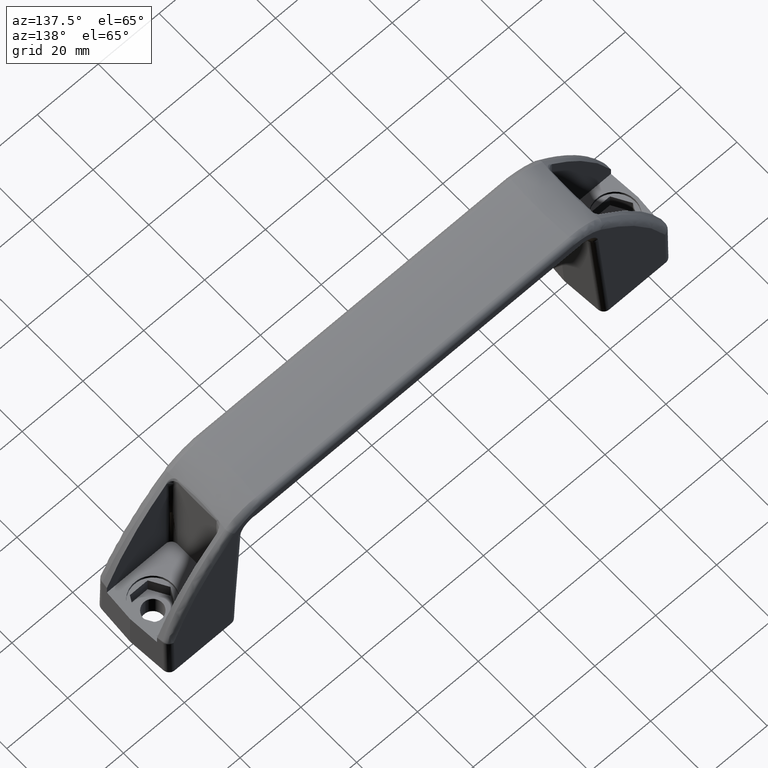
[diagram: clean part render]
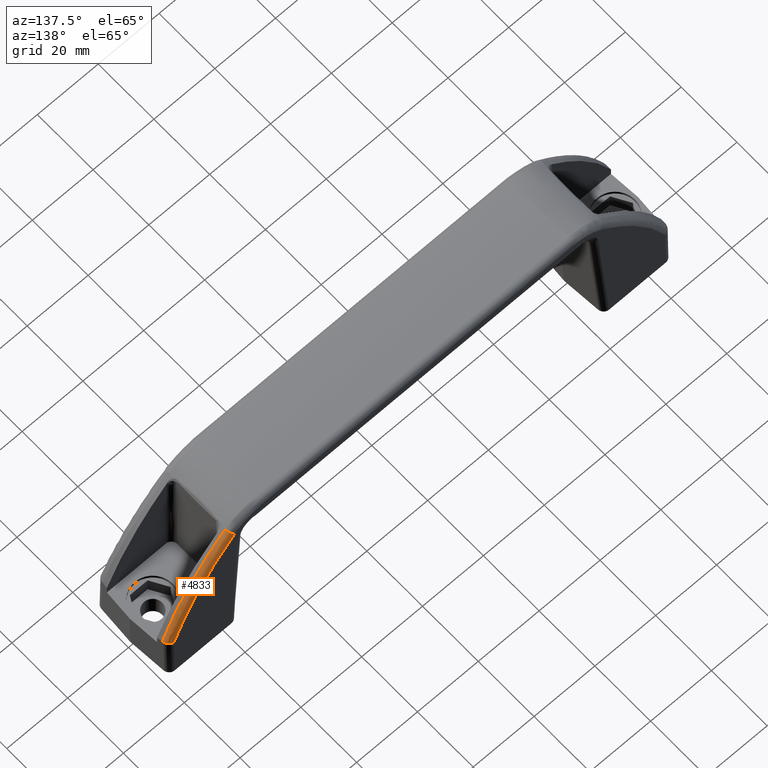
[diagram: same view with one face highlighted and labeled with its STEP entity id]
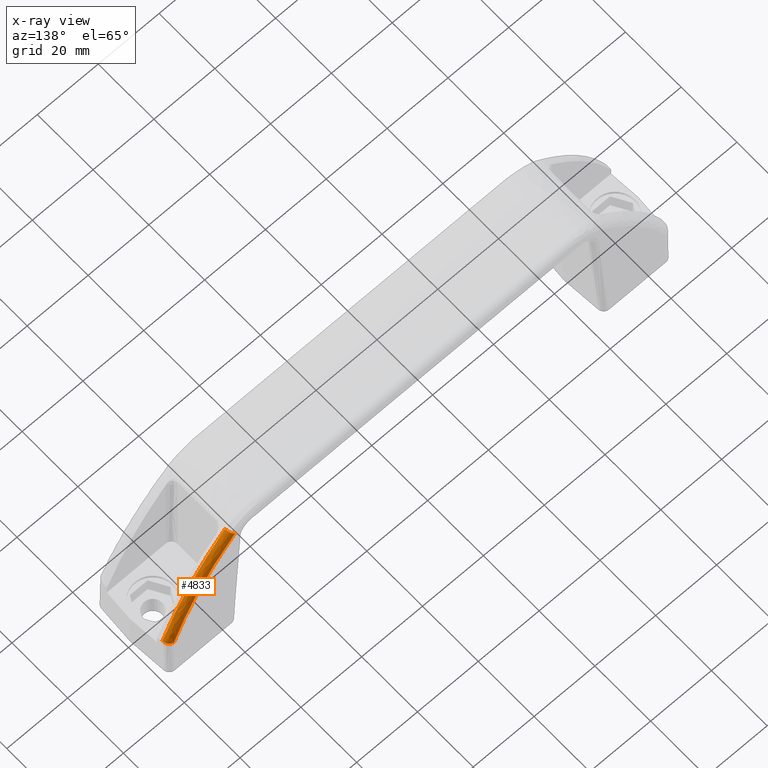
[diagram: x-ray of the same camera — body ghosted, the highlighted face saturated]
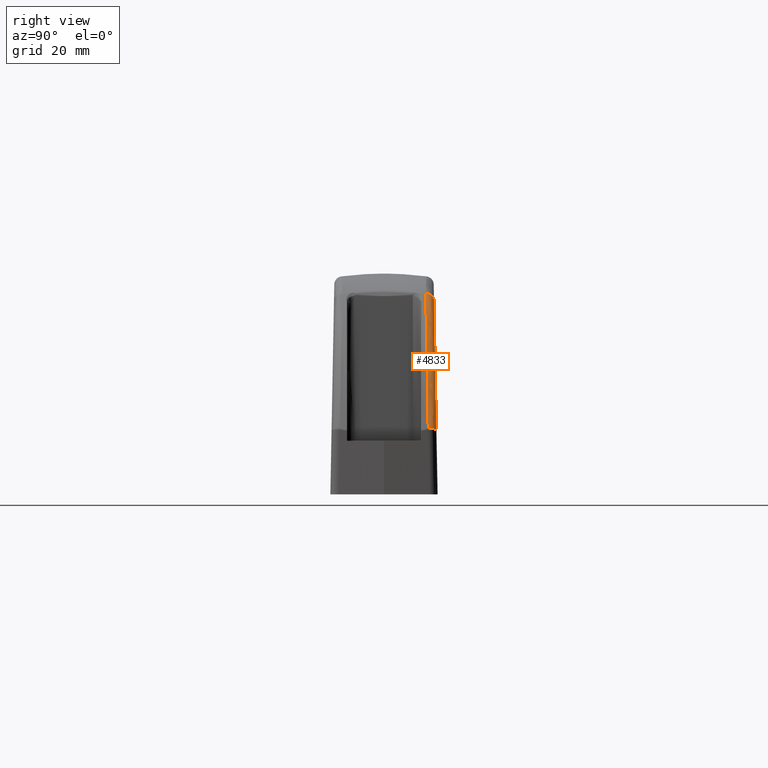
[diagram: same view with one face highlighted and labeled with its STEP entity id]
A machine part, auxiliary view. The second image highlights one B-rep face of the part: STEP entity #4833.
The next image is the same camera in x-ray: the body ghosted, the highlighted face saturated — about 0% of this face is hidden behind the body in this view.
A second angle (right view) of the same face is appended — the face is thin or edge-on in the first view.
In plain terms, the highlighted face is a freeform B-spline surface patch.
Its self-contained STEP definition (entity closure, byte-faithful):
#2326=CARTESIAN_POINT('',(158.659522616671500,10.843078358508000,16.000052211921499));
#2327=VERTEX_POINT('',#2326);
#2341=CARTESIAN_POINT('',(158.666504911986010,10.714030413870100,15.993465574006450));
#2342=VERTEX_POINT('',#2341);
#2343=CARTESIAN_POINT('',(158.666504911986010,10.714030413870100,15.993465574006400));
#2344=CARTESIAN_POINT('',(158.664824797454490,10.756968664140061,15.997870262445460));
#2345=CARTESIAN_POINT('',(158.662500101059090,10.799984335316401,16.000074788987540));
#2346=CARTESIAN_POINT('',(158.659522616671500,10.843078358508000,16.000052211921499));
#2347=QUASI_UNIFORM_CURVE('',3,(#2343,#2344,#2345,#2346),.UNSPECIFIED.,.F.,.U.);
#2348=EDGE_CURVE('',#2342,#2327,#2347,.T.);
#2487=CARTESIAN_POINT('',(156.729857536941490,12.710360635578599,15.495705996542251));
#2488=VERTEX_POINT('',#2487);
#2520=CARTESIAN_POINT('',(158.659522616671500,10.843078358508000,16.000052211921499));
#2521=CARTESIAN_POINT('',(158.650814586259000,10.969112290413049,15.999986182430630));
#2522=CARTESIAN_POINT('',(158.630796931356910,11.092344907410030,15.996722542439450));
#2523=CARTESIAN_POINT('',(158.584511117391710,11.273166321015671,15.987225961228541));
#2524=CARTESIAN_POINT('',(158.566354080153590,11.332764278298800,15.983288293455111));
#2525=CARTESIAN_POINT('',(158.524481616903500,11.450583293127510,15.973838714900451));
#2526=CARTESIAN_POINT('',(158.500625118171400,11.509067013195549,15.968292438132590));
#2527=CARTESIAN_POINT('',(158.421939617341200,11.679144456376729,15.949568016440880));
#2528=CARTESIAN_POINT('',(158.359904041510900,11.786167921025671,15.934294278416040));
#2529=CARTESIAN_POINT('',(158.252760832531810,11.937343797460180,15.907267329942840));
#2530=CARTESIAN_POINT('',(158.214682860464310,11.986165730293351,15.897567821197519));
#2531=CARTESIAN_POINT('',(158.133656255587710,12.080573877420051,15.876743674794859));
#2532=CARTESIAN_POINT('',(158.091111388634490,12.125665549411490,15.865722324315181));
#2533=CARTESIAN_POINT('',(157.958576683251410,12.253698378048890,15.831143731047939));
#2534=CARTESIAN_POINT('',(157.863312321159810,12.329947416619349,15.805977955734869));
#2535=CARTESIAN_POINT('',(157.710012642240510,12.430603247817579,15.765034110071941));
#2536=CARTESIAN_POINT('',(157.656875128126590,12.461996414996900,15.750771052411791));
#2537=CARTESIAN_POINT('',(157.548756981839290,12.519085855266511,15.721610756852840));
#2538=CARTESIAN_POINT('',(157.493771110422700,12.544832167533260,15.706713068026120));
#2539=CARTESIAN_POINT('',(157.326104541616500,12.613889751261530,15.661089417355530));
#2540=CARTESIAN_POINT('',(157.210738472485300,12.649090797248180,15.629440846293930));
#2541=CARTESIAN_POINT('',(157.032160406417200,12.685188682968400,15.580061268848651));
#2542=CARTESIAN_POINT('',(156.971817188211590,12.694370114997341,15.563311521459040));
#2543=CARTESIAN_POINT('',(156.881267979470010,12.703674901738840,15.538082095981810));
#2544=CARTESIAN_POINT('',(156.851024649408290,12.706042848445870,15.529639742468010));
#2545=CARTESIAN_POINT('',(156.790417225595600,12.709308354168691,15.512689768601280));
#2546=CARTESIAN_POINT('',(156.759840597675090,12.710203325752520,15.504122072237330));
#2547=CARTESIAN_POINT('',(156.729857536941490,12.710360635578599,15.495705996542201));
#2548=B_SPLINE_CURVE_WITH_KNOTS('',3,(#2520,#2521,#2522,#2523,#2524,#2525,#2526,#2527,#2528,#2529,#2530,#2531,#2532,#2533,#2534,#2535,#2536,#2537,#2538,#2539,#2540,#2541,#2542,#2543,#2544,#2545,#2546,#2547),.UNSPECIFIED.,.F.,.U.,(4,2,2,2,2,2,2,2,2,2,2,2,2,4),(0.0,0.125000000000016,0.187500000000024,0.250000000000032,0.375000000000038,0.437500000000041,0.500000000000044,0.625000000000050,0.687500000000041,0.750000000000033,0.875000000000016,0.937500000000008,0.968750000000004,1.0),.UNSPECIFIED.);
#2549=EDGE_CURVE('',#2327,#2488,#2548,.T.);
#4738=CARTESIAN_POINT('',(156.866369517837460,12.717792035818727,15.098126083695746));
#4739=CARTESIAN_POINT('',(154.591708220079940,12.605474858604682,21.107095064775194));
#4740=CARTESIAN_POINT('',(151.678345387153480,12.497685094542790,26.873847441983820));
#4741=CARTESIAN_POINT('',(144.703881075096690,12.295955258545153,37.666393667799525));
#4742=CARTESIAN_POINT('',(140.643118014582630,12.202024969475112,42.691664133172175));
#4743=CARTESIAN_POINT('',(136.053958274083360,12.116275078098658,47.279283321712171));
#4744=CARTESIAN_POINT('',(136.008789225494610,12.115431080236503,47.324437207336437));
#4745=CARTESIAN_POINT('',(135.963620173971920,12.114587082319526,47.369591095893611));
#4746=CARTESIAN_POINT('',(156.872932237087750,12.717745616700471,15.100609506522227));
#4747=CARTESIAN_POINT('',(154.598091411186030,12.605419802864901,21.110040546788568));
#4748=CARTESIAN_POINT('',(151.684500371624670,12.497621772621821,26.877235164741865));
#4749=CARTESIAN_POINT('',(144.709492703719800,12.295876487891952,37.670607897759382));
#4750=CARTESIAN_POINT('',(140.648414468365050,12.201939019303380,42.696262467310689));
#4751=CARTESIAN_POINT('',(136.058899907182050,12.116182585269936,47.284231688049893));
#4752=CARTESIAN_POINT('',(136.013727441404260,12.115338524415565,47.329388943757422));
#4753=CARTESIAN_POINT('',(135.968554974157400,12.114494463533756,47.374546200933715));
#4754=CARTESIAN_POINT('',(158.737688728162570,12.704555908476166,15.806258896522186));
#4755=CARTESIAN_POINT('',(156.410716901588360,12.589785704550748,21.946464788253088));
#4756=CARTESIAN_POINT('',(153.431289060965780,12.479650969305659,27.838673138162822));
#4757=CARTESIAN_POINT('',(146.300317764135290,12.273546013525744,38.865288280342831));
#4758=CARTESIAN_POINT('',(142.149120330868640,12.177585757309991,43.999161970054516));
#4759=CARTESIAN_POINT('',(137.458414705428310,12.089987786918654,48.685653399980531));
#4760=CARTESIAN_POINT('',(137.412268015914320,12.089126006908463,48.731758630663506));
#4761=CARTESIAN_POINT('',(137.366121748734170,12.088264234785267,48.777863439392021));
#4762=CARTESIAN_POINT('',(158.750026368714860,10.711009222190327,15.773666704901014));
#4763=CARTESIAN_POINT('',(156.425011952518130,10.598679052238273,21.915652934690154));
#4764=CARTESIAN_POINT('',(153.447157613628430,10.490876845855576,27.810060047208058));
#4765=CARTESIAN_POINT('',(146.318303685369130,10.289123751124457,38.841513850924571));
#4766=CARTESIAN_POINT('',(142.167649897980970,10.195182648822872,43.978025316728633));
#4767=CARTESIAN_POINT('',(137.476903087362960,10.109422900385237,48.667197227826435));
#4768=CARTESIAN_POINT('',(137.430734239418540,10.108578806908186,48.713350574764391));
#4769=CARTESIAN_POINT('',(137.384565389972010,10.107734713403659,48.759503923204036));
#4770=CARTESIAN_POINT('',(158.750069806112800,10.703990499243059,15.773551956866855));
#4771=CARTESIAN_POINT('',(156.425062312487940,10.591664591661159,21.915544387751247));
#4772=CARTESIAN_POINT('',(153.447213549949540,10.483866458050626,27.809959186652033));
#4773=CARTESIAN_POINT('',(146.318367155468510,10.282120969523683,38.841429953893140));
#4774=CARTESIAN_POINT('',(142.167715320140330,10.188183397759008,43.977950689755595));
#4775=CARTESIAN_POINT('',(137.476968394688840,10.102426863797220,48.667132034276563));
#4776=CARTESIAN_POINT('',(137.430799468773840,10.101582800553961,48.713285550878027));
#4777=CARTESIAN_POINT('',(137.384630539858820,10.100738737255854,48.759439070478543));
#4785=(BOUNDED_SURFACE()B_SPLINE_SURFACE(3,2,((#4738,#4746,#4754,#4762,#4770),(#4739,#4747,#4755,#4763,#4771),(#4740,#4748,#4756,#4764,#4772),(#4741,#4749,#4757,#4765,#4773),(#4742,#4750,#4758,#4766,#4774),(#4743,#4751,#4759,#4767,#4775),(#4744,#4752,#4760,#4768,#4776),(#4745,#4753,#4761,#4769,#4777)),.UNSPECIFIED.,.F.,.F.,.U.)B_SPLINE_SURFACE_WITH_KNOTS((4,2,2,4),(3,1,1,3),(0.0,19.704830782941169,39.409661565882303,39.605534648412693),(0.0,0.016491113356796,3.314707351487917,3.331204972278056),.UNSPECIFIED.)GEOMETRIC_REPRESENTATION_ITEM()RATIONAL_B_SPLINE_SURFACE(((1.002905584579202,1.001452792289601,0.709442108818005,1.001453365564963,1.002906731129927),(1.002901235016832,1.001450617508416,0.709877064206639,1.001451189925604,1.002902379851209),(1.002897065334854,1.001448532667427,0.710294031591175,1.001449104261932,1.002898208523864),(1.002889267324221,1.001444633662111,0.711073831133401,1.001445203718059,1.002890407436118),(1.002885639120556,1.001442819560278,0.711436650792210,1.001443388900377,1.002886777800755),(1.002882329927753,1.001441164963876,0.711767569427092,1.001441733651068,1.002883467302136),(1.002882297356955,1.001441148678478,0.711770826500486,1.001441717359243,1.002883434718486),(1.002882264786158,1.001441132393079,0.711774083573880,1.001441701067418,1.002883402134836)))REPRESENTATION_ITEM('')SURFACE());
#4786=CARTESIAN_POINT('',(137.523006361472400,10.117283233841979,48.621109432576702));
#4787=VERTEX_POINT('',#4786);
#4788=CARTESIAN_POINT('',(158.666504911985900,10.714030413870100,15.993465574006409));
#4789=CARTESIAN_POINT('',(151.581853290294960,10.374327346915690,34.567010715401523));
#4790=CARTESIAN_POINT('',(137.523006361472400,10.117283233841979,48.621109432576709));
#4798=(BOUNDED_CURVE()B_SPLINE_CURVE(2,(#4788,#4789,#4790),.UNSPECIFIED.,.F.,.U.)CURVE()GEOMETRIC_REPRESENTATION_ITEM()QUASI_UNIFORM_CURVE()RATIONAL_B_SPLINE_CURVE((1.0,0.977909394126933,1.0))REPRESENTATION_ITEM(''));
#4799=EDGE_CURVE('',#2342,#4787,#4798,.T.);
#4800=ORIENTED_EDGE('',*,*,#4799,.F.);
#4801=ORIENTED_EDGE('',*,*,#2348,.T.);
#4802=ORIENTED_EDGE('',*,*,#2549,.T.);
#4803=CARTESIAN_POINT('',(136.109031676676010,12.116933949871420,47.244033681869993));
#4804=VERTEX_POINT('',#4803);
#4805=CARTESIAN_POINT('',(136.109031676676010,12.116933949871420,47.244033681869993));
#4806=CARTESIAN_POINT('',(149.795220747327820,12.372664168934190,33.562466962015051));
#4807=CARTESIAN_POINT('',(156.729857536941610,12.710360635578610,15.495705996542281));
#4815=(BOUNDED_CURVE()B_SPLINE_CURVE(2,(#4805,#4806,#4807),.UNSPECIFIED.,.F.,.U.)CURVE()GEOMETRIC_REPRESENTATION_ITEM()QUASI_UNIFORM_CURVE()RATIONAL_B_SPLINE_CURVE((1.0,0.978127315125661,1.0))REPRESENTATION_ITEM(''));
#4816=EDGE_CURVE('',#4804,#2488,#4815,.T.);
#4817=ORIENTED_EDGE('',*,*,#4816,.F.);
#4818=CARTESIAN_POINT('',(136.109031676676010,12.116933949871431,47.244033681870022));
#4819=CARTESIAN_POINT('',(137.504561817283530,12.090849574815975,48.639547747338717));
#4820=CARTESIAN_POINT('',(137.523006361472400,10.117283233841979,48.621109432576702));
#4828=(BOUNDED_CURVE()B_SPLINE_CURVE(2,(#4818,#4819,#4820),.UNSPECIFIED.,.F.,.U.)CURVE()GEOMETRIC_REPRESENTATION_ITEM()QUASI_UNIFORM_CURVE()RATIONAL_B_SPLINE_CURVE((1.0,0.711764312353690,1.0))REPRESENTATION_ITEM(''));
#4829=EDGE_CURVE('',#4804,#4787,#4828,.T.);
#4830=ORIENTED_EDGE('',*,*,#4829,.T.);
#4831=EDGE_LOOP('',(#4800,#4801,#4802,#4817,#4830));
#4832=FACE_OUTER_BOUND('',#4831,.T.);
#4833=ADVANCED_FACE('',(#4832),#4785,.T.);